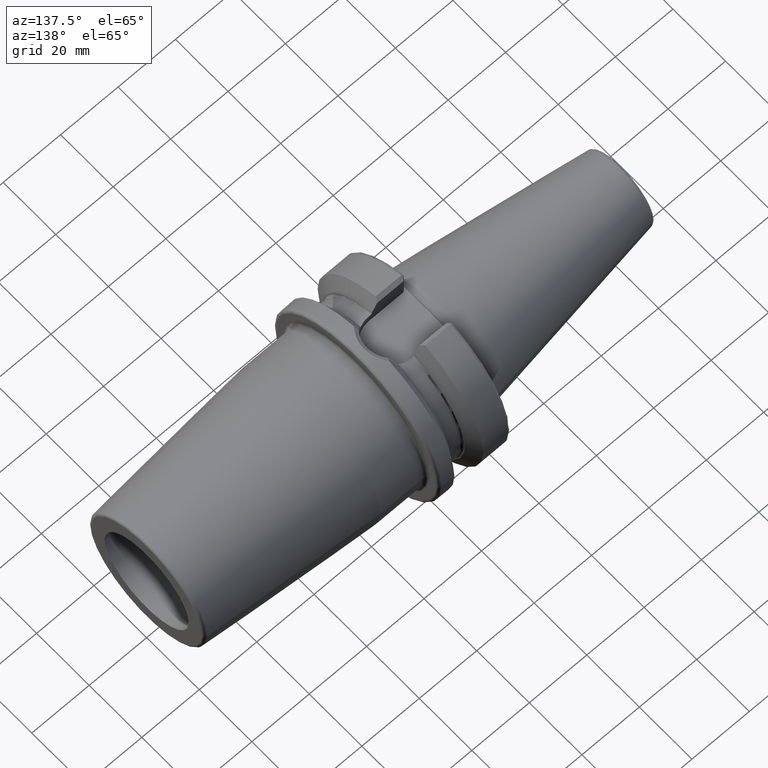
[diagram: clean part render]
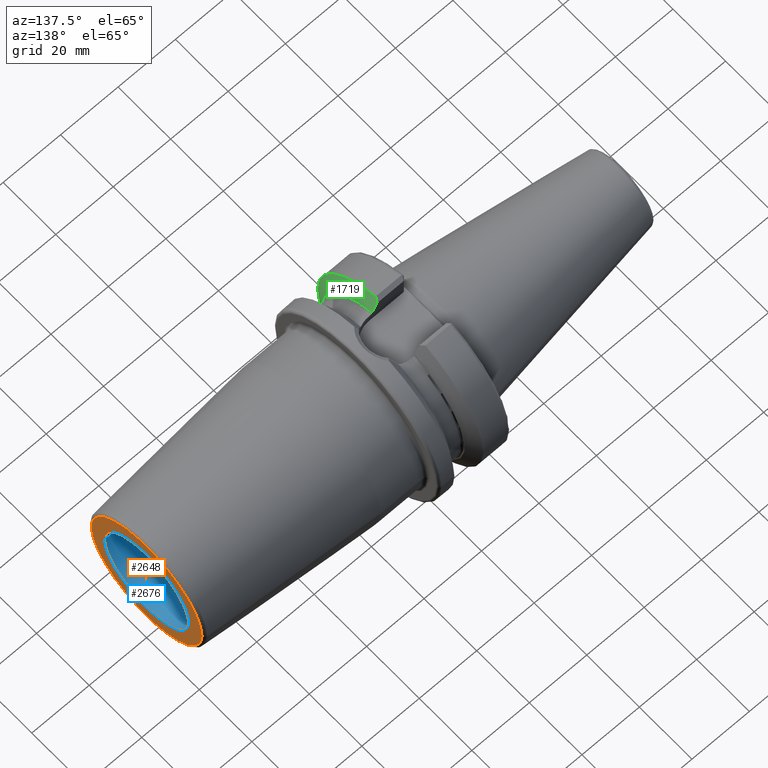
[diagram: same view with three faces highlighted in distinct colors, each labeled with its STEP entity id]
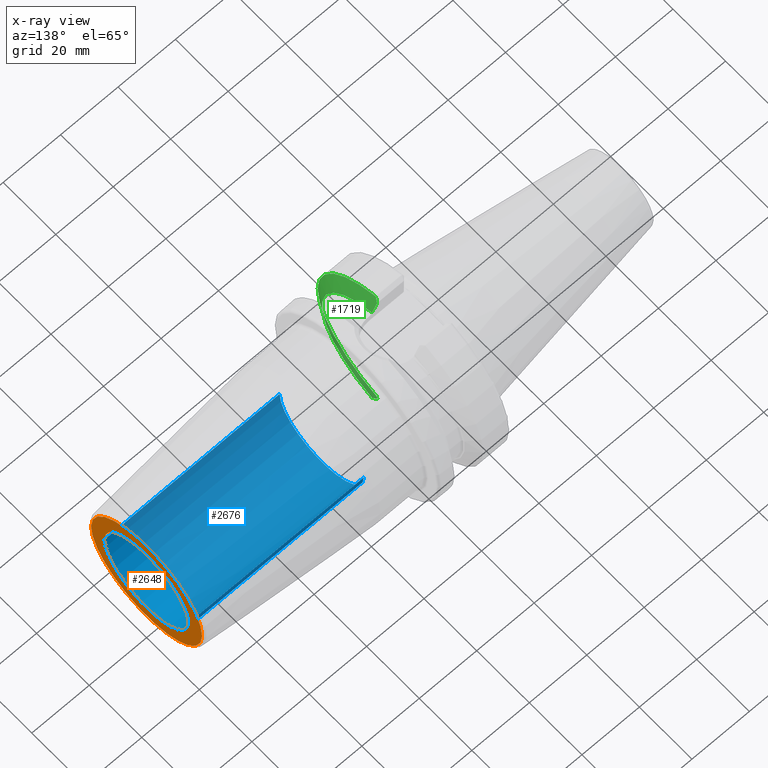
[diagram: x-ray of the same camera — body ghosted, the three highlighted faces saturated]
A machine part, auxiliary view with three faces highlighted in distinct colors.
The next image is the same camera in x-ray (body ghosted, the three faces saturated) — at least one of them is partly hidden behind the body in this view.
Their STEP definitions:

[orange] entity #2648 — the highlighted planar face has unit normal (1, 0, 0).
#912=CARTESIAN_POINT('',(1.E2,0.E0,0.E0));
#913=DIRECTION('',(-1.E0,0.E0,0.E0));
#914=DIRECTION('',(0.E0,1.E0,0.E0));
#915=AXIS2_PLACEMENT_3D('',#912,#913,#914);
#917=CARTESIAN_POINT('',(1.E2,0.E0,0.E0));
#918=DIRECTION('',(-1.E0,0.E0,0.E0));
#919=DIRECTION('',(0.E0,-1.E0,0.E0));
#920=AXIS2_PLACEMENT_3D('',#917,#918,#919);
#922=CARTESIAN_POINT('',(1.E2,0.E0,0.E0));
#923=DIRECTION('',(1.E0,0.E0,0.E0));
#924=DIRECTION('',(0.E0,1.E0,0.E0));
#925=AXIS2_PLACEMENT_3D('',#922,#923,#924);
#927=CARTESIAN_POINT('',(1.E2,0.E0,0.E0));
#928=DIRECTION('',(1.E0,0.E0,0.E0));
#929=DIRECTION('',(0.E0,-1.E0,0.E0));
#930=AXIS2_PLACEMENT_3D('',#927,#928,#929);
#1397=CARTESIAN_POINT('',(1.E2,1.6E1,0.E0));
#1398=VERTEX_POINT('',#1397);
#1399=CARTESIAN_POINT('',(1.E2,-1.6E1,0.E0));
#1400=VERTEX_POINT('',#1399);
#1417=CARTESIAN_POINT('',(1.E2,2.107560950834E1,0.E0));
#1418=CARTESIAN_POINT('',(1.E2,-2.107560950834E1,0.E0));
#1419=VERTEX_POINT('',#1417);
#1420=VERTEX_POINT('',#1418);
#2633=CARTESIAN_POINT('',(1.E2,0.E0,0.E0));
#2634=DIRECTION('',(1.E0,0.E0,0.E0));
#2635=DIRECTION('',(0.E0,-1.E0,0.E0));
#2636=AXIS2_PLACEMENT_3D('',#2633,#2634,#2635);
#2637=PLANE('',#2636);
#2638=ORIENTED_EDGE('',*,*,#2600,.T.);
#2639=ORIENTED_EDGE('',*,*,#2615,.T.);
#2640=EDGE_LOOP('',(#2638,#2639));
#2641=FACE_OUTER_BOUND('',#2640,.F.);
#2643=ORIENTED_EDGE('',*,*,#2642,.T.);
#2645=ORIENTED_EDGE('',*,*,#2644,.T.);
#2646=EDGE_LOOP('',(#2643,#2645));
#2647=FACE_BOUND('',#2646,.F.);
#2648=ADVANCED_FACE('',(#2641,#2647),#2637,.T.);
#916=CIRCLE('',#915,2.107560950834E1);
#921=CIRCLE('',#920,2.107560950834E1);
#926=CIRCLE('',#925,1.6E1);
#931=CIRCLE('',#930,1.6E1);
#2600=EDGE_CURVE('',#1419,#1420,#916,.T.);
#2615=EDGE_CURVE('',#1420,#1419,#921,.T.);
#2642=EDGE_CURVE('',#1398,#1400,#926,.T.);
#2644=EDGE_CURVE('',#1400,#1398,#931,.T.);

[blue] entity #2676 — the highlighted cylindrical surface (partial cylindrical patch) has radius 16 mm, axis along (1, 0, 0).
#927=CARTESIAN_POINT('',(1.E2,0.E0,0.E0));
#928=DIRECTION('',(1.E0,0.E0,0.E0));
#929=DIRECTION('',(0.E0,-1.E0,0.E0));
#930=AXIS2_PLACEMENT_3D('',#927,#928,#929);
#932=DIRECTION('',(-1.E0,0.E0,0.E0));
#933=VECTOR('',#932,6.1E1);
#934=CARTESIAN_POINT('',(1.E2,1.6E1,0.E0));
#935=LINE('',#934,#933);
#936=DIRECTION('',(-1.E0,0.E0,0.E0));
#937=VECTOR('',#936,6.1E1);
#938=CARTESIAN_POINT('',(1.E2,-1.6E1,0.E0));
#939=LINE('',#938,#937);
#940=CARTESIAN_POINT('',(3.9E1,0.E0,0.E0));
#941=DIRECTION('',(-1.E0,0.E0,0.E0));
#942=DIRECTION('',(0.E0,1.E0,0.E0));
#943=AXIS2_PLACEMENT_3D('',#940,#941,#942);
#1393=CARTESIAN_POINT('',(3.9E1,1.6E1,0.E0));
#1394=CARTESIAN_POINT('',(3.9E1,-1.6E1,0.E0));
#1395=VERTEX_POINT('',#1393);
#1396=VERTEX_POINT('',#1394);
#1397=CARTESIAN_POINT('',(1.E2,1.6E1,0.E0));
#1398=VERTEX_POINT('',#1397);
#1399=CARTESIAN_POINT('',(1.E2,-1.6E1,0.E0));
#1400=VERTEX_POINT('',#1399);
#2664=CARTESIAN_POINT('',(3.595E1,0.E0,0.E0));
#2665=DIRECTION('',(1.E0,0.E0,0.E0));
#2666=DIRECTION('',(0.E0,-1.E0,0.E0));
#2667=AXIS2_PLACEMENT_3D('',#2664,#2665,#2666);
#2668=CYLINDRICAL_SURFACE('',#2667,1.6E1);
#2669=ORIENTED_EDGE('',*,*,#2654,.F.);
#2670=ORIENTED_EDGE('',*,*,#2644,.F.);
#2671=ORIENTED_EDGE('',*,*,#2658,.T.);
#2673=ORIENTED_EDGE('',*,*,#2672,.F.);
#2674=EDGE_LOOP('',(#2669,#2670,#2671,#2673));
#2675=FACE_OUTER_BOUND('',#2674,.F.);
#2676=ADVANCED_FACE('',(#2675),#2668,.F.);
#931=CIRCLE('',#930,1.6E1);
#944=CIRCLE('',#943,1.6E1);
#2644=EDGE_CURVE('',#1400,#1398,#931,.T.);
#2654=EDGE_CURVE('',#1398,#1395,#935,.T.);
#2658=EDGE_CURVE('',#1400,#1396,#939,.T.);
#2672=EDGE_CURVE('',#1395,#1396,#944,.T.);

[green] entity #1719 — the highlighted conical surface has half-angle 60 deg.
#205=CARTESIAN_POINT('',(1.40625E1,0.E0,0.E0));
#206=DIRECTION('',(1.E0,0.E0,0.E0));
#207=DIRECTION('',(0.E0,-2.978832194960E-1,9.546023190537E-1));
#208=AXIS2_PLACEMENT_3D('',#205,#206,#207);
#210=CARTESIAN_POINT('',(1.157272253103E1,0.E0,0.E0));
#211=DIRECTION('',(1.E0,0.E0,0.E0));
#212=DIRECTION('',(0.E0,-2.983189831898E-1,9.544662300305E-1));
#213=AXIS2_PLACEMENT_3D('',#210,#211,#212);
#283=CARTESIAN_POINT('',(1.157272253103E1,-9.052779463114E0,-3.015808084481E1));
#284=CARTESIAN_POINT('',(1.166664976709E1,-8.890092718051E0,-3.003705750519E1));
#285=CARTESIAN_POINT('',(1.185193462301E1,-8.567774254092E0,-2.979728347248E1));
#286=CARTESIAN_POINT('',(1.203209445084E1,-8.251571174555E0,-2.956205869943E1));
#287=CARTESIAN_POINT('',(1.212089730171E1,-8.095E0,-2.944558475789E1));
#331=CARTESIAN_POINT('',(1.40625E1,-8.095E0,-2.594139336151E1));
#332=CARTESIAN_POINT('',(1.385657504808E1,-8.095E0,-2.631502798627E1));
#333=CARTESIAN_POINT('',(1.343816757814E1,-8.095E0,-2.707276272189E1));
#334=CARTESIAN_POINT('',(1.279109429984E1,-8.095E0,-2.824052697941E1));
#335=CARTESIAN_POINT('',(1.234647911565E1,-8.095E0,-2.904036968182E1));
#336=CARTESIAN_POINT('',(1.212089730171E1,-8.095E0,-2.944558475789E1));
#536=CARTESIAN_POINT('',(1.231359829731E1,-8.095E0,2.909928918805E1));
#537=CARTESIAN_POINT('',(1.251575951516E1,-8.095E0,2.873583944049E1));
#538=CARTESIAN_POINT('',(1.291487013940E1,-8.095E0,2.801733166678E1));
#539=CARTESIAN_POINT('',(1.349777805891E1,-8.095E0,2.696486188593E1));
#540=CARTESIAN_POINT('',(1.387600348310E1,-8.095E0,2.627977661939E1));
#541=CARTESIAN_POINT('',(1.40625E1,-8.095E0,2.594139336151E1));
#566=CARTESIAN_POINT('',(1.231359829731E1,-8.095E0,2.909928918805E1));
#567=CARTESIAN_POINT('',(1.219482394511E1,-8.305723816550E0,2.925420394272E1));
#568=CARTESIAN_POINT('',(1.195258450384E1,-8.732839300267E0,2.956820020312E1));
#569=CARTESIAN_POINT('',(1.170091988157E1,-9.171274658654E0,2.989051833068E1));
#570=CARTESIAN_POINT('',(1.157272253103E1,-9.393318983190E0,3.005375541808E1));
#1222=CARTESIAN_POINT('',(1.40625E1,-8.095E0,2.594139336151E1));
#1223=CARTESIAN_POINT('',(1.40625E1,-8.095E0,-2.594139336151E1));
#1224=VERTEX_POINT('',#1222);
#1225=VERTEX_POINT('',#1223);
#1329=VERTEX_POINT('',#536);
#1337=VERTEX_POINT('',#336);
#1340=CARTESIAN_POINT('',(1.157272253103E1,-9.393318983190E0,3.005375541808E1));
#1341=CARTESIAN_POINT('',(1.157272253103E1,-9.052779463114E0,
-3.015808084481E1));
#1342=VERTEX_POINT('',#1340);
#1343=VERTEX_POINT('',#1341);
#1701=CARTESIAN_POINT('',(1.281761126552E1,0.E0,0.E0));
#1702=DIRECTION('',(-1.E0,0.E0,0.E0));
#1703=DIRECTION('',(0.E0,1.E0,0.E0));
#1704=AXIS2_PLACEMENT_3D('',#1701,#1702,#1703);
#1705=CONICAL_SURFACE('',#1704,2.933128946210E1,6.E1);
#1706=ORIENTED_EDGE('',*,*,#1672,.T.);
#1708=ORIENTED_EDGE('',*,*,#1707,.T.);
#1710=ORIENTED_EDGE('',*,*,#1709,.F.);
#1712=ORIENTED_EDGE('',*,*,#1711,.F.);
#1714=ORIENTED_EDGE('',*,*,#1713,.F.);
#1716=ORIENTED_EDGE('',*,*,#1715,.T.);
#1717=EDGE_LOOP('',(#1706,#1708,#1710,#1712,#1714,#1716));
#1718=FACE_OUTER_BOUND('',#1717,.F.);
#1719=ADVANCED_FACE('',(#1718),#1705,.T.);
#209=CIRCLE('',#208,2.717507892421E1);
#214=CIRCLE('',#213,3.14875E1);
#288=B_SPLINE_CURVE_WITH_KNOTS('',3,(#283,#284,#285,#286,#287),.UNSPECIFIED.,
.F.,.F.,(4,1,4),(0.E0,5.E-1,1.E0),.UNSPECIFIED.);
#337=B_SPLINE_CURVE_WITH_KNOTS('',3,(#331,#332,#333,#334,#335,#336),
.UNSPECIFIED.,.F.,.F.,(4,1,1,4),(0.E0,3.333333333333E-1,6.666666666667E-1,1.E0),
.UNSPECIFIED.);
#542=B_SPLINE_CURVE_WITH_KNOTS('',3,(#536,#537,#538,#539,#540,#541),
.UNSPECIFIED.,.F.,.F.,(4,1,1,4),(0.E0,3.333333333333E-1,6.666666666667E-1,1.E0),
.UNSPECIFIED.);
#571=B_SPLINE_CURVE_WITH_KNOTS('',3,(#566,#567,#568,#569,#570),.UNSPECIFIED.,
.F.,.F.,(4,1,4),(0.E0,5.E-1,1.E0),.UNSPECIFIED.);
#1672=EDGE_CURVE('',#1224,#1225,#209,.T.);
#1707=EDGE_CURVE('',#1225,#1337,#337,.T.);
#1709=EDGE_CURVE('',#1343,#1337,#288,.T.);
#1711=EDGE_CURVE('',#1342,#1343,#214,.T.);
#1713=EDGE_CURVE('',#1329,#1342,#571,.T.);
#1715=EDGE_CURVE('',#1329,#1224,#542,.T.);